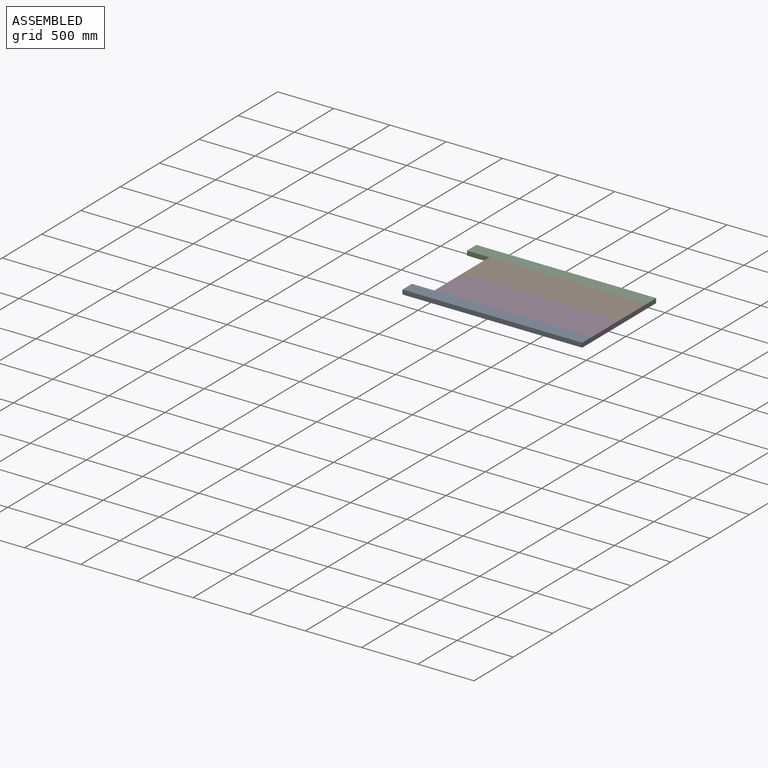
[diagram: assembled view]
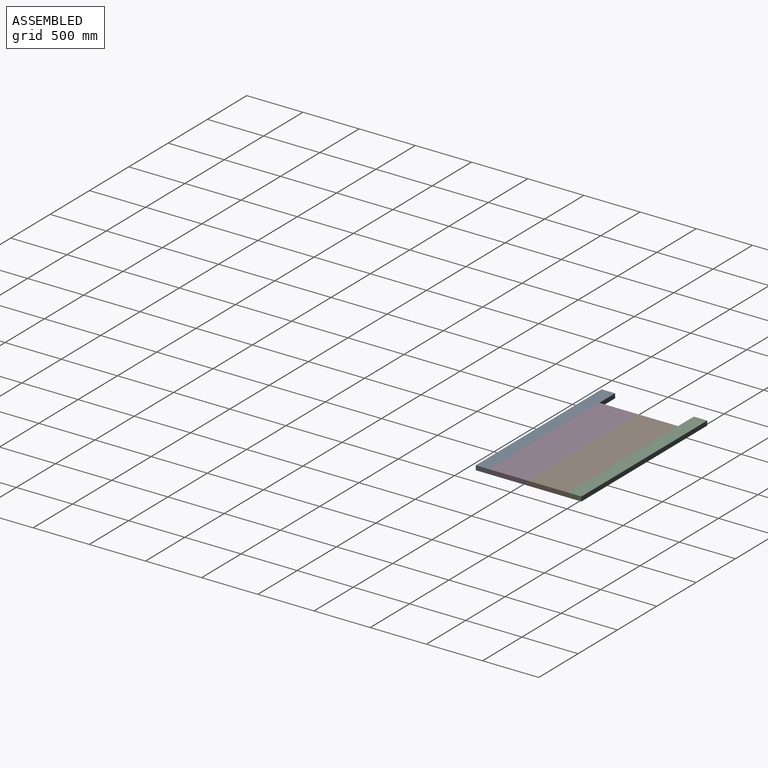
[diagram: assembled view, second angle]
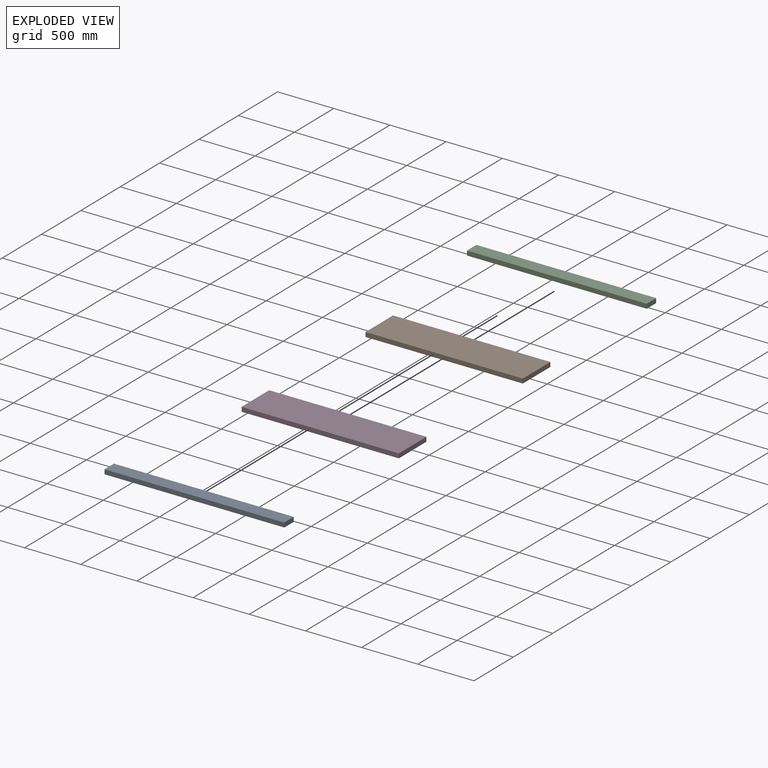
[diagram: exploded view]
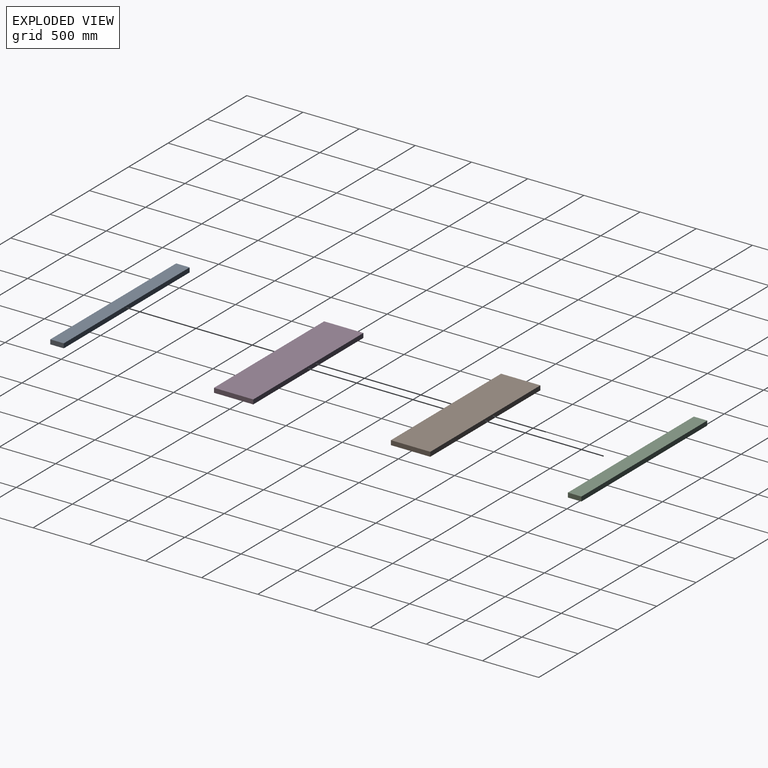
[diagram: exploded view, second angle]
ASSEMBLY  parts=4 mates=3
PART A: 6 faces, bbox 1600x120x40 mm
  f0: plane 1600x40mm, normal (0,1,0), area 64000mm2, adj f1,f3,f4,f5
  f1: plane 120x40mm, normal (-1,0,0), area 4800mm2, adj f0,f2,f4,f5
  f2: plane 1600x40mm, normal (0,-1,0), area 64000mm2, adj f1,f3,f4,f5
  f3: plane 120x40mm, normal (1,0,0), area 4800mm2, adj f0,f2,f4,f5
  f4: plane 1600x120mm, normal (0,0,1), area 192000mm2, adj f0,f1,f2,f3
  f5: plane 1600x120mm, normal (0,0,-1), area 192000mm2, adj f0,f1,f2,f3
PART B: 6 faces, bbox 1400x350x40 mm
  f0: plane 1400x40mm, normal (0,1,0), area 56000mm2, adj f1,f3,f4,f5
  f1: plane 350x40mm, normal (-1,0,0), area 14000mm2, adj f0,f2,f4,f5
  f2: plane 1400x40mm, normal (0,-1,0), area 56000mm2, adj f1,f3,f4,f5
  f3: plane 350x40mm, normal (1,0,0), area 14000mm2, adj f0,f2,f4,f5
  f4: plane 1400x350mm, normal (0,0,1), area 490000mm2, adj f0,f1,f2,f3
  f5: plane 1400x350mm, normal (0,0,-1), area 490000mm2, adj f0,f1,f2,f3
PART C: same geometry as A
PART D: same geometry as B
PLACE A t=(-1214.42,-770.87,-26.88)mm
PLACE B t=(-1014.42,-70.87,-26.88)mm
PLACE C t=(-1214.42,49.13,-26.88)mm
PLACE D t=(-1014.42,-420.87,-26.88)mm
MATE fastened B.f0 <-> C.f2  axis (0,1,0) through (385.58,-70.87,13.12)mm
MATE fastened B.f2 <-> D.f0  axis (0,-1,0) through (385.58,-420.87,13.12)mm
MATE fastened A.f0 <-> D.f2  axis (0,1,0) through (385.58,-770.87,13.12)mm
